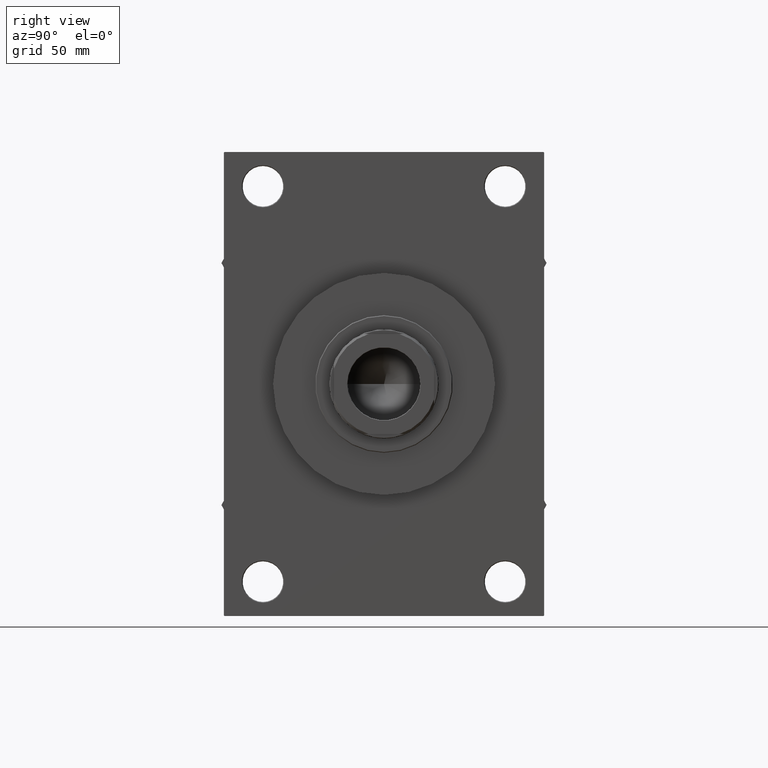
[diagram: clean part render]
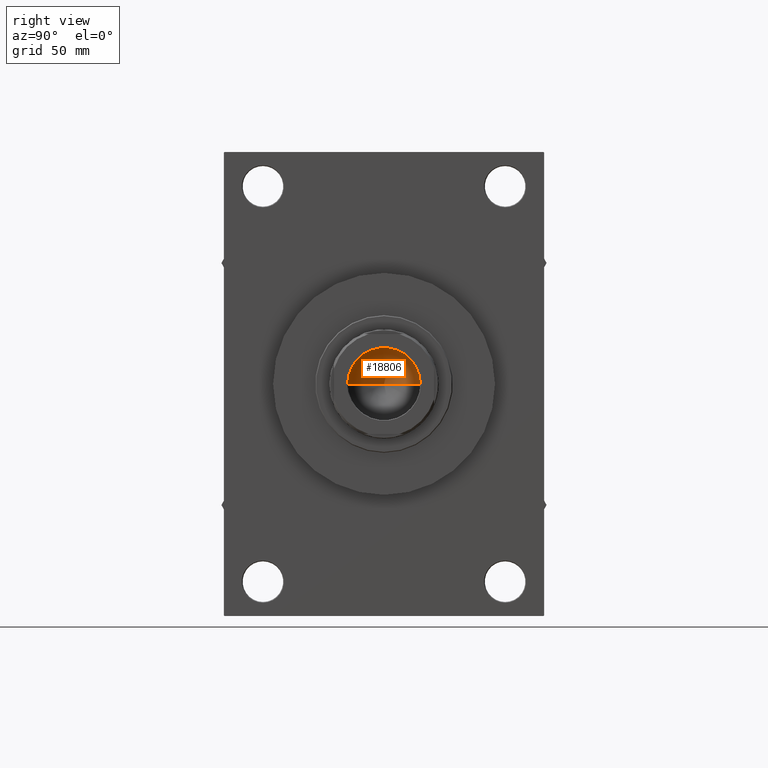
[diagram: same view with one face highlighted and labeled with its STEP entity id]
A machine part, right view. The second image highlights one B-rep face of the part: STEP entity #18806.
In plain terms, the highlighted conical surface has half-angle 59 deg.
Its self-contained STEP definition (entity closure, byte-faithful):
#342 = ORIENTED_EDGE ( 'NONE', *, *, #30472, .T. ) ;
#2212 = CARTESIAN_POINT ( 'NONE',  ( -23.24999999999998579, 2.847303808017594561E-15, 136.9999999999999716 ) ) ;
#4223 = CARTESIAN_POINT ( 'NONE',  ( 0.000000000000000000, 0.000000000000000000, 136.9999999999999716 ) ) ;
#6336 = DIRECTION ( 'NONE',  ( 0.8571673007021117785, 0.000000000000000000, 0.5150380749100550437 ) ) ;
#9951 = CIRCLE ( 'NONE', #45305, 23.24999999999998579 ) ;
#10802 = AXIS2_PLACEMENT_3D ( 'NONE', #31521, #26940, #46220 ) ;
#14852 = DIRECTION ( 'NONE',  ( 1.000000000000000000, 0.000000000000000000, 0.000000000000000000 ) ) ;
#14935 = EDGE_CURVE ( 'NONE', #23374, #16621, #9951, .T. ) ;
#16621 = VERTEX_POINT ( 'NONE', #43397 ) ;
#16827 = FACE_OUTER_BOUND ( 'NONE', #30315, .T. ) ;
#18806 = ADVANCED_FACE ( 'NONE', ( #16827 ), #38567, .F. ) ;
#23374 = VERTEX_POINT ( 'NONE', #24167 ) ;
#23525 = EDGE_CURVE ( 'NONE', #37147, #16621, #28502, .T. ) ;
#24167 = CARTESIAN_POINT ( 'NONE',  ( -23.24999999999998579, 2.847303808017594561E-15, 136.9999999999999716 ) ) ;
#26521 = VECTOR ( 'NONE', #31623, 1000.000000000000000 ) ;
#26940 = DIRECTION ( 'NONE',  ( -0.000000000000000000, -0.000000000000000000, 1.000000000000000000 ) ) ;
#28502 = LINE ( 'NONE', #31875, #42412 ) ;
#28801 = ORIENTED_EDGE ( 'NONE', *, *, #23525, .F. ) ;
#29931 = ORIENTED_EDGE ( 'NONE', *, *, #14935, .T. ) ;
#30315 = EDGE_LOOP ( 'NONE', ( #28801, #342, #29931 ) ) ;
#30472 = EDGE_CURVE ( 'NONE', #37147, #23374, #38859, .T. ) ;
#31521 = CARTESIAN_POINT ( 'NONE',  ( 0.000000000000000000, 0.000000000000000000, 136.9999999999999716 ) ) ;
#31623 = DIRECTION ( 'NONE',  ( -0.8571673007021117785, 1.049727191138617956E-16, 0.5150380749100550437 ) ) ;
#31658 = CARTESIAN_POINT ( 'NONE',  ( -1.584115414415908206E-14, 0.000000000000000000, 123.0299906076091929 ) ) ;
#31875 = CARTESIAN_POINT ( 'NONE',  ( 23.24999999999998579, 0.000000000000000000, 136.9999999999999716 ) ) ;
#33163 = DIRECTION ( 'NONE',  ( -0.000000000000000000, -0.000000000000000000, 1.000000000000000000 ) ) ;
#37147 = VERTEX_POINT ( 'NONE', #31658 ) ;
#38567 = CONICAL_SURFACE ( 'NONE', #10802, 23.24999999999998579, 1.029744258676653423 ) ;
#38859 = LINE ( 'NONE', #2212, #26521 ) ;
#42412 = VECTOR ( 'NONE', #6336, 1000.000000000000000 ) ;
#43397 = CARTESIAN_POINT ( 'NONE',  ( 23.24999999999998579, 0.000000000000000000, 136.9999999999999716 ) ) ;
#45305 = AXIS2_PLACEMENT_3D ( 'NONE', #4223, #33163, #14852 ) ;
#46220 = DIRECTION ( 'NONE',  ( 1.000000000000000000, 0.000000000000000000, 0.000000000000000000 ) ) ;